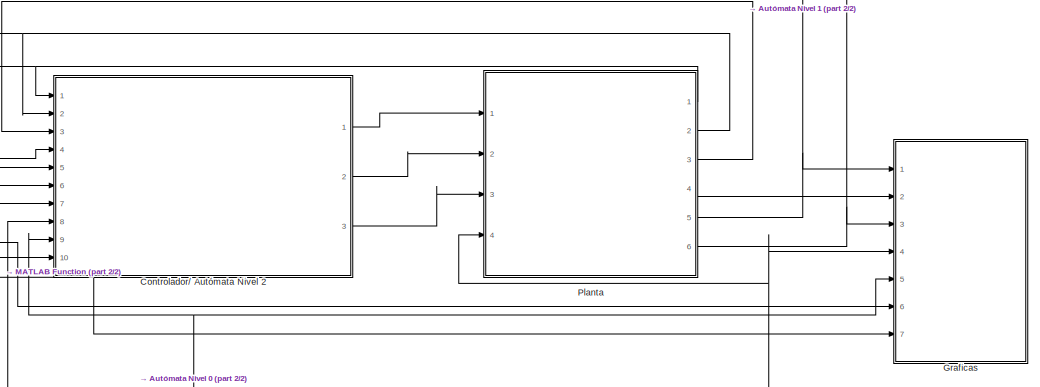
[diagram: root canvas - part 1/2, middle right region]
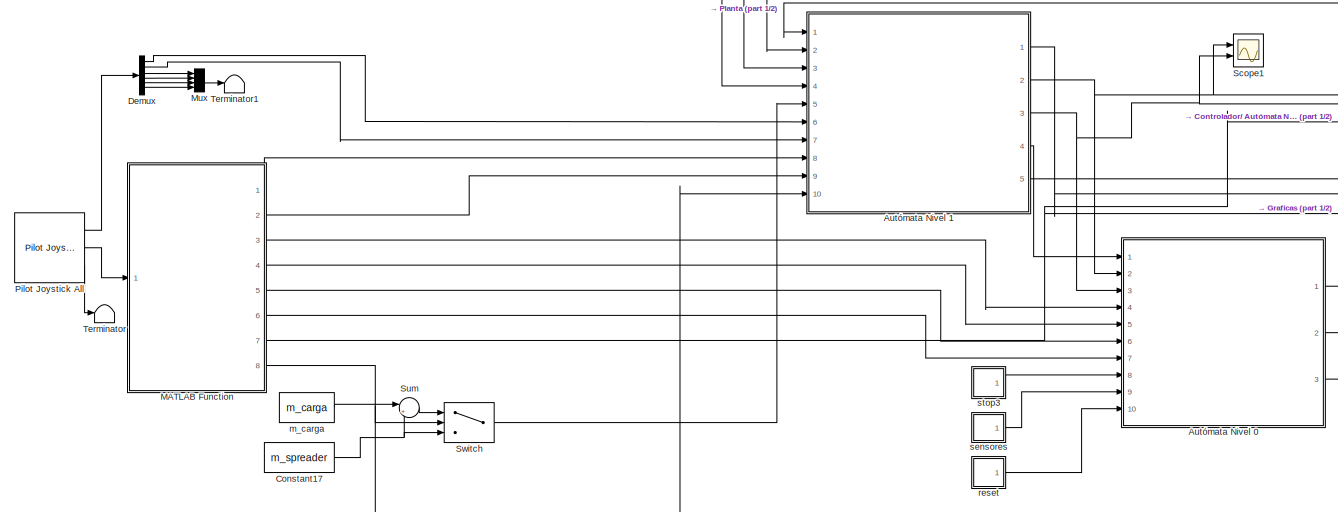
[diagram: root canvas - part 2/2, left side, full height]
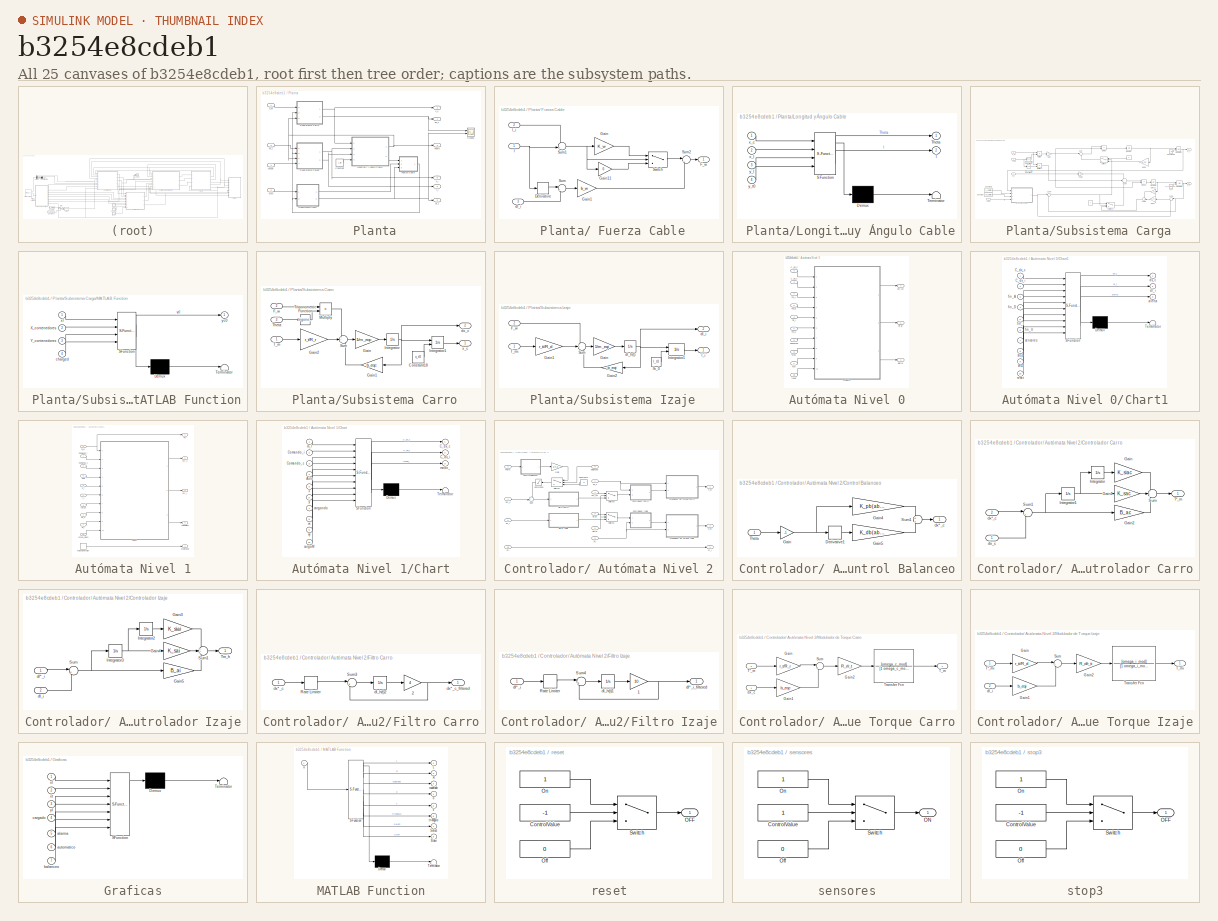
[diagram: thumbnail index - all 25 canvases of the model, root first then tree order]
MODEL slx_b3254e8cdeb1
KIND model
CONFIG AbsTol = auto
CONFIG EnableMultiTasking = on
CONFIG FixedStep = 0.01
CONFIG MaxStep = auto
CONFIG MinStep = auto
CONFIG RelTol = 1e-3
CONFIG SampleTimeConstraint = Unconstrained
CONFIG SolverName = FixedStepAuto
CONFIG StartTime = 0.0
CONFIG StopTime = inf
BLOCK [SubSystem]  Planta
  Ports = [4, 6]
  RequestExecContextInheritance = off
BLOCK [SubSystem]  Planta/ Fuerza Cable
  Ports = [3, 1]
  RequestExecContextInheritance = off
BLOCK [Derivative]  Planta/ Fuerza Cable/Derivative
  NameLocation = top
BLOCK [Outport]  Planta/ Fuerza Cable/F_w
  VectorParamsAs1DForOutWhenUnconnected = off
BLOCK [Gain]  Planta/ Fuerza Cable/Gain
  Gain = K_w
BLOCK [Gain]  Planta/ Fuerza Cable/Gain1
  Gain = b_w
BLOCK [Gain]  Planta/ Fuerza Cable/Gain11
  Gain = 0
BLOCK [Sum]  Planta/ Fuerza Cable/Sum
  Inputs = |+-
  Ports = [2, 1]
BLOCK [Sum]  Planta/ Fuerza Cable/Sum1
  Inputs = -+|
  Ports = [2, 1]
BLOCK [Sum]  Planta/ Fuerza Cable/Sum2
  Inputs = |++
  Ports = [2, 1]
BLOCK [Switch]  Planta/ Fuerza Cable/Switch
  InputSameDT = off
  SaturateOnIntegerOverflow = off
BLOCK [Inport]  Planta/ Fuerza Cable/dl_i
  Port = 3
BLOCK [Inport]  Planta/ Fuerza Cable/l
BLOCK [Inport]  Planta/ Fuerza Cable/l_i
  Port = 2
BLOCK [Constant]  Planta/Constant
  Value = y_t0
BLOCK [SubSystem]  Planta/Longitud y Ángulo Cable
  ErrorFcn = Stateflow.Translate.translate
  PermitHierarchicalResolution = ExplicitOnly
  Ports = [4, 2]
  RequestExecContextInheritance = off
  SFBlockType = MATLAB Function
  TreatAsAtomicUnit = on
BLOCK [Demux]  Planta/Longitud y Ángulo Cable/ Demux 
  Outputs = 1
  Ports = [1, 1]
BLOCK [S-Function]  Planta/Longitud y Ángulo Cable/ SFunction 
  EnableBusSupport = off
  FunctionName = sf_sfun
  PortCounts = [4 3]
  Ports = [4, 3]
  SFcnIsStateOwnerBlock = off
  SFunctionDeploymentMode = off
  Tag = Stateflow S-Function 8
BLOCK [Terminator]  Planta/Longitud y Ángulo Cable/ Terminator 
BLOCK [Outport]  Planta/Longitud y Ángulo Cable/Theta
  VectorParamsAs1DForOutWhenUnconnected = off
BLOCK [Outport]  Planta/Longitud y Ángulo Cable/l
  Port = 2
  VectorParamsAs1DForOutWhenUnconnected = off
BLOCK [Inport]  Planta/Longitud y Ángulo Cable/x_c
BLOCK [Inport]  Planta/Longitud y Ángulo Cable/x_l
  Port = 2
BLOCK [Inport]  Planta/Longitud y Ángulo Cable/y_l
  Port = 3
BLOCK [Inport]  Planta/Longitud y Ángulo Cable/y_t0
  Port = 4
BLOCK [Scope]  Planta/Scope1
  Floating = off
  NumInputPorts = 2
  Ports = [2]
  ScopeSpecificationString = Simulink.scopes.TimeScopeBlockCfg('CurrentConfiguration', extmgr.ConfigurationSet(extmgr.Configuration('Core','General UI',true),extmgr.Configuration('Core','Source UI',true),extmgr.Configuration('Sources','WiredSimulink',true,'DataLoggingVariableName','ScopeData1'),extmgr.Configuration('Visuals','Time Domain',true,'SerializedDisplays',{struct('MinYLimReal','-4.99834','MaxYLimReal','5.12215','YLab...<+2062ch>
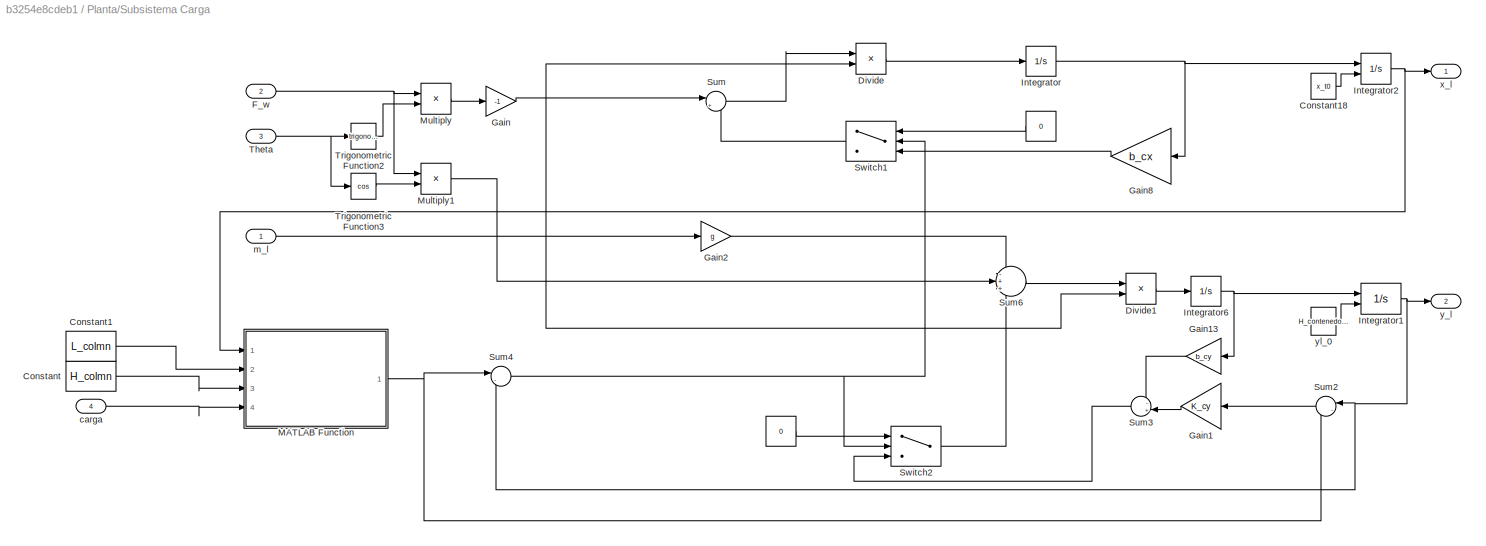
BLOCK [SubSystem]  Planta/Subsistema Carga
  Ports = [4, 2]
  RequestExecContextInheritance = off
BLOCK [Constant]  Planta/Subsistema Carga/ 
  Value = 0
BLOCK [Constant]  Planta/Subsistema Carga/   
  Value = 0
BLOCK [Constant]  Planta/Subsistema Carga/Constant
  Value = H_colmn
BLOCK [Constant]  Planta/Subsistema Carga/Constant1
  Value = L_colmn
BLOCK [Constant]  Planta/Subsistema Carga/Constant18
  Value = x_t0
BLOCK [Product]  Planta/Subsistema Carga/Divide
  Inputs = */
  Ports = [2, 1]
BLOCK [Product]  Planta/Subsistema Carga/Divide1
  Inputs = */
  Ports = [2, 1]
BLOCK [Inport]  Planta/Subsistema Carga/F_w
  Port = 2
BLOCK [Gain]  Planta/Subsistema Carga/Gain
  Gain = -1
BLOCK [Gain]  Planta/Subsistema Carga/Gain1
  Gain = K_cy
BLOCK [Gain]  Planta/Subsistema Carga/Gain13
  Gain = b_cy
BLOCK [Gain]  Planta/Subsistema Carga/Gain2
  Gain = g
BLOCK [Gain]  Planta/Subsistema Carga/Gain8
  Gain = b_cx
BLOCK [Integrator]  Planta/Subsistema Carga/Integrator
  Ports = [1, 1]
BLOCK [Integrator]  Planta/Subsistema Carga/Integrator1
  InitialConditionSource = external
  Ports = [2, 1]
BLOCK [Integrator]  Planta/Subsistema Carga/Integrator2
  InitialConditionSource = external
  Ports = [2, 1]
BLOCK [Integrator]  Planta/Subsistema Carga/Integrator6
  Ports = [1, 1]
BLOCK [SubSystem]  Planta/Subsistema Carga/MATLAB Function
  ErrorFcn = Stateflow.Translate.translate
  PermitHierarchicalResolution = ExplicitOnly
  Ports = [4, 1]
  RequestExecContextInheritance = off
  SFBlockType = MATLAB Function
  TreatAsAtomicUnit = on
BLOCK [Demux]  Planta/Subsistema Carga/MATLAB Function/ Demux 
  Outputs = 1
  Ports = [1, 1]
BLOCK [S-Function]  Planta/Subsistema Carga/MATLAB Function/ SFunction 
  EnableBusSupport = on
  FunctionName = sf_sfun
  PortCounts = [4 2]
  Ports = [4, 2]
  SFcnIsStateOwnerBlock = off
  SFunctionDeploymentMode = off
  Tag = Stateflow S-Function 3
BLOCK [Terminator]  Planta/Subsistema Carga/MATLAB Function/ Terminator 
BLOCK [Inport]  Planta/Subsistema Carga/MATLAB Function/X_contenedores
  Port = 2
BLOCK [Inport]  Planta/Subsistema Carga/MATLAB Function/Y_contenedores
  Port = 3
BLOCK [Inport]  Planta/Subsistema Carga/MATLAB Function/charged
  Port = 4
BLOCK [Inport]  Planta/Subsistema Carga/MATLAB Function/xl
BLOCK [Outport]  Planta/Subsistema Carga/MATLAB Function/yc0
BLOCK [Product]  Planta/Subsistema Carga/Multiply
  Ports = [2, 1]
BLOCK [Product]  Planta/Subsistema Carga/Multiply1
  Ports = [2, 1]
BLOCK [Sum]  Planta/Subsistema Carga/Sum
  Inputs = |+-
  Ports = [2, 1]
BLOCK [Sum]  Planta/Subsistema Carga/Sum2
  Inputs = |-+
  NameLocation = top
  Ports = [2, 1]
BLOCK [Sum]  Planta/Subsistema Carga/Sum3
  Inputs = -+|
  NameLocation = top
  Ports = [2, 1]
BLOCK [Sum]  Planta/Subsistema Carga/Sum4
  Inputs = |-+
  Ports = [2, 1]
BLOCK [Sum]  Planta/Subsistema Carga/Sum6
  Inputs = -++
  Ports = [3, 1]
BLOCK [Switch]  Planta/Subsistema Carga/Switch1
  Criteria = u2 > Threshold
  InputSameDT = off
  SaturateOnIntegerOverflow = off
BLOCK [Switch]  Planta/Subsistema Carga/Switch2
  Criteria = u2 > Threshold
  InputSameDT = off
  SaturateOnIntegerOverflow = off
BLOCK [Inport]  Planta/Subsistema Carga/Theta
  Port = 3
BLOCK [Trigonometry]  Planta/Subsistema Carga/Trigonometric Function2
  Ports = [1, 1]
BLOCK [Trigonometry]  Planta/Subsistema Carga/Trigonometric Function3
  Operator = cos
  Ports = [1, 1]
BLOCK [Inport]  Planta/Subsistema Carga/carga
  Port = 4
BLOCK [Inport]  Planta/Subsistema Carga/m_l
BLOCK [Outport]  Planta/Subsistema Carga/x_l
  VectorParamsAs1DForOutWhenUnconnected = off
BLOCK [Outport]  Planta/Subsistema Carga/y_l
  Port = 2
  VectorParamsAs1DForOutWhenUnconnected = off
BLOCK [Constant]  Planta/Subsistema Carga/yl_0
  Value = H_contenedor + H_seguridad
BLOCK [SubSystem]  Planta/Subsistema Carro
  Ports = [3, 2]
  RequestExecContextInheritance = off
BLOCK [Constant]  Planta/Subsistema Carro/Constant18
  Value = x_t0
BLOCK [Inport]  Planta/Subsistema Carro/F_w
  Port = 2
BLOCK [Gain]  Planta/Subsistema Carro/Gain
  Gain = 1/m_eqc
  NameLocation = top
BLOCK [Gain]  Planta/Subsistema Carro/Gain1
  Gain = b_eqc
  NameLocation = top
BLOCK [Gain]  Planta/Subsistema Carro/Gain2
  Gain = r_t/R_r
  NameLocation = top
BLOCK [Integrator]  Planta/Subsistema Carro/Integrator
  NameLocation = top
  Ports = [1, 1]
BLOCK [Integrator]  Planta/Subsistema Carro/Integrator1
  InitialConditionSource = external
  Ports = [2, 1]
BLOCK [Product]  Planta/Subsistema Carro/Multiply
  Ports = [2, 1]
BLOCK [Sum]  Planta/Subsistema Carro/Sum
  Inputs = ++-
  Ports = [3, 1]
BLOCK [Inport]  Planta/Subsistema Carro/T_m
BLOCK [Inport]  Planta/Subsistema Carro/Theta
  Port = 3
BLOCK [Trigonometry]  Planta/Subsistema Carro/Trigonometric Function
  Ports = [1, 1]
BLOCK [Outport]  Planta/Subsistema Carro/dx_c
  Port = 2
  VectorParamsAs1DForOutWhenUnconnected = off
BLOCK [Outport]  Planta/Subsistema Carro/x_c
  VectorParamsAs1DForOutWhenUnconnected = off
BLOCK [SubSystem]  Planta/Subsistema Izaje
  Ports = [2, 2]
  RequestExecContextInheritance = off
BLOCK [Inport]  Planta/Subsistema Izaje/F_w
  NameLocation = top
  Port = 2
BLOCK [Gain]  Planta/Subsistema Izaje/Gain
  Gain = 1/m_eqi
  NameLocation = top
BLOCK [Gain]  Planta/Subsistema Izaje/Gain1
  Gain = r_ti/R_d
BLOCK [Gain]  Planta/Subsistema Izaje/Gain2
  Gain = b_eqi
  NameLocation = top
BLOCK [Integrator]  Planta/Subsistema Izaje/Integrator1
  InitialConditionSource = external
  Ports = [2, 1]
BLOCK [Sum]  Planta/Subsistema Izaje/Sum
  Inputs = ++-
  Ports = [3, 1]
BLOCK [Inport]  Planta/Subsistema Izaje/T_mi
BLOCK [Integrator]  Planta/Subsistema Izaje/dl_h(t)
  Ports = [1, 1]
BLOCK [Outport]  Planta/Subsistema Izaje/dl_i
  Port = 2
  VectorParamsAs1DForOutWhenUnconnected = off
BLOCK [Outport]  Planta/Subsistema Izaje/l_i
  VectorParamsAs1DForOutWhenUnconnected = off
BLOCK [Constant]  Planta/Subsistema Izaje/lh_0
  Value = l_t0
BLOCK [Inport]  Planta/T_m
BLOCK [Inport]  Planta/T_mi
  Port = 2
BLOCK [Outport]  Planta/Theta
  Port = 3
  VectorParamsAs1DForOutWhenUnconnected = off
BLOCK [Inport]  Planta/carga
  Port = 4
BLOCK [Outport]  Planta/dl_i
  Port = 2
  VectorParamsAs1DForOutWhenUnconnected = off
BLOCK [Outport]  Planta/dx_c
  VectorParamsAs1DForOutWhenUnconnected = off
BLOCK [Inport]  Planta/m_l
  NameLocation = top
  Port = 3
BLOCK [Outport]  Planta/x_c
  Port = 4
  VectorParamsAs1DForOutWhenUnconnected = off
BLOCK [Outport]  Planta/x_l
  Port = 5
  VectorParamsAs1DForOutWhenUnconnected = off
BLOCK [Outport]  Planta/y_l
  Port = 6
  VectorParamsAs1DForOutWhenUnconnected = off
BLOCK [SubSystem] Autómata Nivel 0
  Ports = [10, 3]
  RequestExecContextInheritance = off
BLOCK [Inport] Autómata Nivel 0/C_dx_c
  Port = 2
BLOCK [Inport] Autómata Nivel 0/C_dx_i
  Port = 3
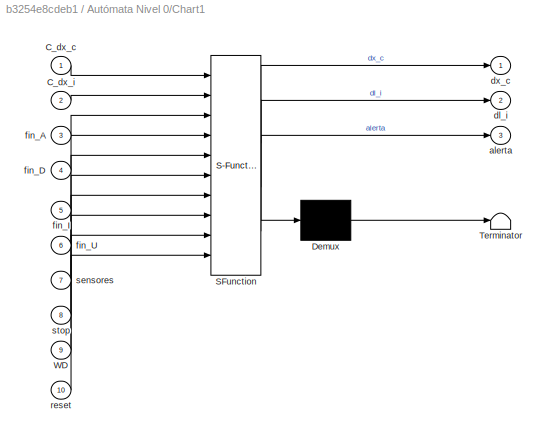
BLOCK [SubSystem] Autómata Nivel 0/Chart1
  ErrorFcn = Stateflow.Translate.translate
  PermitHierarchicalResolution = ExplicitOnly
  Ports = [10, 3]
  RequestExecContextInheritance = off
  SFBlockType = Chart
  TreatAsAtomicUnit = on
BLOCK [Demux] Autómata Nivel 0/Chart1/ Demux 
  Outputs = 1
  Ports = [1, 1]
BLOCK [S-Function] Autómata Nivel 0/Chart1/ SFunction 
  EnableBusSupport = off
  FunctionName = sf_sfun
  PortCounts = [10 4]
  Ports = [10, 4]
  SFcnIsStateOwnerBlock = off
  SFunctionDeploymentMode = off
  Tag = Stateflow S-Function 7
BLOCK [Terminator] Autómata Nivel 0/Chart1/ Terminator 
BLOCK [Inport] Autómata Nivel 0/Chart1/C_dx_c
BLOCK [Inport] Autómata Nivel 0/Chart1/C_dx_i
  Port = 2
BLOCK [Inport] Autómata Nivel 0/Chart1/WD
  Port = 9
BLOCK [Outport] Autómata Nivel 0/Chart1/alerta
  Port = 3
BLOCK [Outport] Autómata Nivel 0/Chart1/dl_i
  Port = 2
BLOCK [Outport] Autómata Nivel 0/Chart1/dx_c
BLOCK [Inport] Autómata Nivel 0/Chart1/fin_A
  Port = 3
BLOCK [Inport] Autómata Nivel 0/Chart1/fin_D
  Port = 4
BLOCK [Inport] Autómata Nivel 0/Chart1/fin_I
  Port = 5
BLOCK [Inport] Autómata Nivel 0/Chart1/fin_U
  Port = 6
BLOCK [Inport] Autómata Nivel 0/Chart1/reset
  Port = 10
BLOCK [Inport] Autómata Nivel 0/Chart1/sensores
  Port = 7
BLOCK [Inport] Autómata Nivel 0/Chart1/stop
  Port = 8
BLOCK [Inport] Autómata Nivel 0/WD
BLOCK [Outport] Autómata Nivel 0/alerta
  Port = 3
BLOCK [Outport] Autómata Nivel 0/dl*_i0
  Port = 2
BLOCK [Outport] Autómata Nivel 0/dx*_c0
BLOCK [Inport] Autómata Nivel 0/fin_A
  Port = 7
BLOCK [Inport] Autómata Nivel 0/fin_D
  Port = 5
BLOCK [Inport] Autómata Nivel 0/fin_I
  Port = 4
BLOCK [Inport] Autómata Nivel 0/fin_U
  Port = 6
BLOCK [Inport] Autómata Nivel 0/reset
  Port = 10
BLOCK [Inport] Autómata Nivel 0/sensores
  Port = 9
BLOCK [Inport] Autómata Nivel 0/stop
  Port = 8
BLOCK [SubSystem] Autómata Nivel 1
  Ports = [10, 5]
  RequestExecContextInheritance = off
BLOCK [SubSystem] Autómata Nivel 1/Chart
  ErrorFcn = Stateflow.Translate.translate
  PermitHierarchicalResolution = ExplicitOnly
  Ports = [10, 3]
  RequestExecContextInheritance = off
  SFBlockType = Chart
  TreatAsAtomicUnit = on
BLOCK [Demux] Autómata Nivel 1/Chart/ Demux 
  Outputs = 1
  Ports = [1, 1]
BLOCK [S-Function] Autómata Nivel 1/Chart/ SFunction 
  EnableBusSupport = off
  FunctionName = sf_sfun
  Parameters = H,L,v_c_max
  PortCounts = [10 4]
  Ports = [10, 4]
  SFcnIsStateOwnerBlock = off
  SFunctionDeploymentMode = off
  Tag = Stateflow S-Function 1
BLOCK [Terminator] Autómata Nivel 1/Chart/ Terminator 
BLOCK [Inport] Autómata Nivel 1/Chart/Auto
  Port = 4
BLOCK [Outport] Autómata Nivel 1/Chart/C_dx_c
  VectorParamsAs1DForOutWhenUnconnected = off
BLOCK [Outport] Autómata Nivel 1/Chart/C_dx_i
  Port = 2
  VectorParamsAs1DForOutWhenUnconnected = off
BLOCK [Inport] Autómata Nivel 1/Chart/Comando_c
  Port = 3
BLOCK [Inport] Autómata Nivel 1/Chart/Comando_i
  Port = 2
BLOCK [Inport] Autómata Nivel 1/Chart/cargaM
  Port = 10
BLOCK [Inport] Autómata Nivel 1/Chart/cargando
  Port = 7
BLOCK [Inport] Autómata Nivel 1/Chart/m_l
BLOCK [Outport] Autómata Nivel 1/Chart/modo_
  Port = 3
BLOCK [Inport] Autómata Nivel 1/Chart/vx
  Port = 8
BLOCK [Inport] Autómata Nivel 1/Chart/vy
  Port = 9
BLOCK [Inport] Autómata Nivel 1/Chart/x
  Port = 5
BLOCK [Inport] Autómata Nivel 1/Chart/y
  Port = 6
BLOCK [Inport] Autómata Nivel 1/Comando_c
  Port = 6
BLOCK [Inport] Autómata Nivel 1/Comando_i
  Port = 7
BLOCK [DiscretePulseGenerator] Autómata Nivel 1/Pulse Generator
  Period = 0.2
  PhaseDelay = 0.1
  Ports = [0, 1]
  PulseType = Time based
  PulseWidth = 50
BLOCK [Outport] Autómata Nivel 1/Watchdog
  Port = 4
BLOCK [Inport] Autómata Nivel 1/auto
  Port = 8
BLOCK [Outport] Autómata Nivel 1/automatico
  Port = 5
BLOCK [Inport] Autómata Nivel 1/carga
  Port = 9
BLOCK [Inport] Autómata Nivel 1/carga_masa
  Port = 10
BLOCK [Inport] Autómata Nivel 1/dl_i
  Port = 2
BLOCK [Outport] Autómata Nivel 1/dx*_c
  Port = 2
  VectorParamsAs1DForOutWhenUnconnected = off
BLOCK [Outport] Autómata Nivel 1/dx*_i
  Port = 3
  VectorParamsAs1DForOutWhenUnconnected = off
BLOCK [Inport] Autómata Nivel 1/dx_c
BLOCK [Outport] Autómata Nivel 1/m_l
  VectorParamsAs1DForOutWhenUnconnected = off
BLOCK [Inport] Autómata Nivel 1/m_w
  Port = 5
BLOCK [Inport] Autómata Nivel 1/x_l
  Port = 3
BLOCK [Inport] Autómata Nivel 1/y_l
  Port = 4
BLOCK [Constant] Constant17
  NameLocation = top
  Value = m_spreader
BLOCK [SubSystem] Controlador// Autómata Nivel 2
  Ports = [10, 3]
  RequestExecContextInheritance = off
BLOCK [Inport] Controlador// Autómata Nivel 2/Alerta
  Port = 9
BLOCK [Inport] Controlador// Autómata Nivel 2/Balanceo
  Port = 6
BLOCK [Constant] Controlador// Autómata Nivel 2/Constant2
  Value = 0
BLOCK [SubSystem] Controlador// Autómata Nivel 2/Control Balanceo
  NameLocation = top
  Ports = [1, 1]
  RequestExecContextInheritance = off
BLOCK [Derivative] Controlador// Autómata Nivel 2/Control Balanceo/Derivative1
BLOCK [Gain] Controlador// Autómata Nivel 2/Control Balanceo/Gain
  Gain = -1
BLOCK [Gain] Controlador// Autómata Nivel 2/Control Balanceo/Gain4
  Gain = K_pb(abs(lh))
BLOCK [Gain] Controlador// Autómata Nivel 2/Control Balanceo/Gain5
  Gain = K_db(abs(lh))
BLOCK [Sum] Controlador// Autómata Nivel 2/Control Balanceo/Sum1
  Inputs = +|+
  Ports = [2, 1]
BLOCK [Inport] Controlador// Autómata Nivel 2/Control Balanceo/Theta
BLOCK [Outport] Controlador// Autómata Nivel 2/Control Balanceo/dx*_c
  VectorParamsAs1DForOutWhenUnconnected = off
BLOCK [SubSystem] Controlador// Autómata Nivel 2/Controlador Carro
  Ports = [2, 1]
  RequestExecContextInheritance = off
BLOCK [Gain] Controlador// Autómata Nivel 2/Controlador Carro/Gain
  Gain = K_siac
BLOCK [Gain] Controlador// Autómata Nivel 2/Controlador Carro/Gain1
  Gain = K_sac
BLOCK [Gain] Controlador// Autómata Nivel 2/Controlador Carro/Gain2
  Gain = B_ac
BLOCK [Integrator] Controlador// Autómata Nivel 2/Controlador Carro/Integrator
  Ports = [1, 1]
BLOCK [Integrator] Controlador// Autómata Nivel 2/Controlador Carro/Integrator1
  Ports = [1, 1]
BLOCK [Sum] Controlador// Autómata Nivel 2/Controlador Carro/Sum
  Inputs = +++
  Ports = [3, 1]
BLOCK [Sum] Controlador// Autómata Nivel 2/Controlador Carro/Sum1
  Inputs = |+-
  Ports = [2, 1]
BLOCK [Outport] Controlador// Autómata Nivel 2/Controlador Carro/T*_m
  VectorParamsAs1DForOutWhenUnconnected = off
BLOCK [Inport] Controlador// Autómata Nivel 2/Controlador Carro/dx*_c
  Port = 2
BLOCK [Inport] Controlador// Autómata Nivel 2/Controlador Carro/dx_c
BLOCK [SubSystem] Controlador// Autómata Nivel 2/Controlador Izaje
  Ports = [2, 1]
  RequestExecContextInheritance = off
BLOCK [Gain] Controlador// Autómata Nivel 2/Controlador Izaje/Gain3
  Gain = K_siai
BLOCK [Gain] Controlador// Autómata Nivel 2/Controlador Izaje/Gain4
  Gain = K_sai
BLOCK [Gain] Controlador// Autómata Nivel 2/Controlador Izaje/Gain5
  Gain = B_ai
BLOCK [Integrator] Controlador// Autómata Nivel 2/Controlador Izaje/Integrator2
  Ports = [1, 1]
BLOCK [Integrator] Controlador// Autómata Nivel 2/Controlador Izaje/Integrator3
  Ports = [1, 1]
BLOCK [Sum] Controlador// Autómata Nivel 2/Controlador Izaje/Sum
  Inputs = |+-
  Ports = [2, 1]
BLOCK [Sum] Controlador// Autómata Nivel 2/Controlador Izaje/Sum1
  Inputs = +++
  Ports = [3, 1]
BLOCK [Outport] Controlador// Autómata Nivel 2/Controlador Izaje/Tm_h
  VectorParamsAs1DForOutWhenUnconnected = off
BLOCK [Inport] Controlador// Autómata Nivel 2/Controlador Izaje/dl*_i
BLOCK [Inport] Controlador// Autómata Nivel 2/Controlador Izaje/dl_i
  Port = 2
BLOCK [SubSystem] Controlador// Autómata Nivel 2/Filtro Carro
  Ports = [1, 1]
  RequestExecContextInheritance = off
BLOCK [Gain] Controlador// Autómata Nivel 2/Filtro Carro/2
  Gain = 4
BLOCK [RateLimiter] Controlador// Autómata Nivel 2/Filtro Carro/Rate Limiter 
  FallingSlewLimit = -a_c_max
  RisingSlewLimit = a_c_max
BLOCK [Sum] Controlador// Autómata Nivel 2/Filtro Carro/Sum3
  Inputs = |+-
  Ports = [2, 1]
BLOCK [Integrator] Controlador// Autómata Nivel 2/Filtro Carro/dl_h(t)2
  Ports = [1, 1]
BLOCK [Inport] Controlador// Autómata Nivel 2/Filtro Carro/dx*_c
BLOCK [Outport] Controlador// Autómata Nivel 2/Filtro Carro/dx*_c_filtered
  VectorParamsAs1DForOutWhenUnconnected = off
BLOCK [SubSystem] Controlador// Autómata Nivel 2/Filtro Izaje
  Ports = [1, 1]
  RequestExecContextInheritance = off
BLOCK [Gain] Controlador// Autómata Nivel 2/Filtro Izaje/1
  Gain = 10
BLOCK [RateLimiter] Controlador// Autómata Nivel 2/Filtro Izaje/Rate Limiter
  FallingSlewLimit = -a_i_max
  RisingSlewLimit = a_i_max
BLOCK [Sum] Controlador// Autómata Nivel 2/Filtro Izaje/Sum4
  Inputs = |+-
  Ports = [2, 1]
BLOCK [Inport] Controlador// Autómata Nivel 2/Filtro Izaje/dl*_i
BLOCK [Outport] Controlador// Autómata Nivel 2/Filtro Izaje/dl*_i_filtered
  VectorParamsAs1DForOutWhenUnconnected = off
BLOCK [Integrator] Controlador// Autómata Nivel 2/Filtro Izaje/dl_h(t)1
  Ports = [1, 1]
BLOCK [Gain] Controlador// Autómata Nivel 2/Gain
  Gain = 1/4.3
BLOCK [SubSystem] Controlador// Autómata Nivel 2/Modulador de Torque Carro
  Ports = [2, 1]
  RequestExecContextInheritance = off
BLOCK [Gain] Controlador// Autómata Nivel 2/Modulador de Torque Carro/Gain
  Gain = r_t/R_r
BLOCK [Gain] Controlador// Autómata Nivel 2/Modulador de Torque Carro/Gain1
  Gain = b_eqc
BLOCK [Gain] Controlador// Autómata Nivel 2/Modulador de Torque Carro/Gain2
  Gain = R_r/r_t
BLOCK [Sum] Controlador// Autómata Nivel 2/Modulador de Torque Carro/Sum
  Inputs = |++
  Ports = [2, 1]
BLOCK [Inport] Controlador// Autómata Nivel 2/Modulador de Torque Carro/T*_m
  Port = 2
BLOCK [Outport] Controlador// Autómata Nivel 2/Modulador de Torque Carro/T_m
  VectorParamsAs1DForOutWhenUnconnected = off
BLOCK [TransferFcn] Controlador// Autómata Nivel 2/Modulador de Torque Carro/Transfer Fcn
  Denominator = [1 omega_c_mod]
  Numerator = [omega_c_mod]
BLOCK [Inport] Controlador// Autómata Nivel 2/Modulador de Torque Carro/dx_c
BLOCK [SubSystem] Controlador// Autómata Nivel 2/Modulador de Torque Izaje
  Ports = [2, 1]
  RequestExecContextInheritance = off
BLOCK [Gain] Controlador// Autómata Nivel 2/Modulador de Torque Izaje/Gain
  Gain = r_ti/R_d
BLOCK [Gain] Controlador// Autómata Nivel 2/Modulador de Torque Izaje/Gain1
  Gain = b_eqi
BLOCK [Gain] Controlador// Autómata Nivel 2/Modulador de Torque Izaje/Gain2
  Gain = R_d/r_ti
BLOCK [Sum] Controlador// Autómata Nivel 2/Modulador de Torque Izaje/Sum
  Inputs = |++
  Ports = [2, 1]
BLOCK [Inport] Controlador// Autómata Nivel 2/Modulador de Torque Izaje/T*_mi
BLOCK [Outport] Controlador// Autómata Nivel 2/Modulador de Torque Izaje/T_mi
  VectorParamsAs1DForOutWhenUnconnected = off
BLOCK [TransferFcn] Controlador// Autómata Nivel 2/Modulador de Torque Izaje/Transfer Fcn
  Denominator = [1 omega_i_mod]
  Numerator = [omega_i_mod]
BLOCK [Inport] Controlador// Autómata Nivel 2/Modulador de Torque Izaje/dl_i
  Port = 2
BLOCK [Saturate] Controlador// Autómata Nivel 2/Saturation 
  LowerLimit = -5
  UpperLimit = 5
BLOCK [Sum] Controlador// Autómata Nivel 2/Sum
  Inputs = ++|
  Ports = [2, 1]
BLOCK [Switch] Controlador// Autómata Nivel 2/Switch1
  Criteria = u2 > Threshold
  InputSameDT = off
  SaturateOnIntegerOverflow = off
BLOCK [Switch] Controlador// Autómata Nivel 2/Switch2
  Criteria = u2 > Threshold
  InputSameDT = off
  SaturateOnIntegerOverflow = off
BLOCK [Switch] Controlador// Autómata Nivel 2/Switch3
  Criteria = u2 > Threshold
  InputSameDT = off
  SaturateOnIntegerOverflow = off
BLOCK [Outport] Controlador// Autómata Nivel 2/T_m
  VectorParamsAs1DForOutWhenUnconnected = off
BLOCK [Outport] Controlador// Autómata Nivel 2/T_mi
  Port = 2
  VectorParamsAs1DForOutWhenUnconnected = off
BLOCK [Inport] Controlador// Autómata Nivel 2/Theta
  Port = 3
BLOCK [Inport] Controlador// Autómata Nivel 2/dl*_i
  Port = 5
BLOCK [Inport] Controlador// Autómata Nivel 2/dl*_i0
  Port = 8
BLOCK [Inport] Controlador// Autómata Nivel 2/dl_i
  Port = 2
BLOCK [Inport] Controlador// Autómata Nivel 2/dx*_c
  Port = 4
BLOCK [Inport] Controlador// Autómata Nivel 2/dx*_c0
  Port = 7
BLOCK [Inport] Controlador// Autómata Nivel 2/dx_c
BLOCK [Outport] Controlador// Autómata Nivel 2/m_l
  Port = 3
  VectorParamsAs1DForOutWhenUnconnected = off
BLOCK [Inport] Controlador// Autómata Nivel 2/ml
  Port = 10
BLOCK [Demux] Demux
  Outputs = 6
  Ports = [1, 6]
BLOCK [SubSystem] Graficas
  ErrorFcn = Stateflow.Translate.translate
  PermitHierarchicalResolution = ExplicitOnly
  Ports = [7]
  RequestExecContextInheritance = off
  SFBlockType = Chart
  TreatAsAtomicUnit = on
BLOCK [Demux] Graficas/ Demux 
  Outputs = 1
  Ports = [1, 1]
BLOCK [S-Function] Graficas/ SFunction 
  EnableBusSupport = off
  FunctionName = sf_sfun
  PortCounts = [7 1]
  Ports = [7, 1]
  SFcnIsStateOwnerBlock = off
  SFunctionDeploymentMode = off
  Tag = Stateflow S-Function 2
BLOCK [Terminator] Graficas/ Terminator 
BLOCK [Inport] Graficas/alarma
  Port = 5
BLOCK [Inport] Graficas/automatico
  Port = 6
BLOCK [Inport] Graficas/balanceo
  Port = 7
BLOCK [Inport] Graficas/cargado
  Port = 4
BLOCK [Inport] Graficas/xl
BLOCK [Inport] Graficas/xt
  Port = 2
BLOCK [Inport] Graficas/yl
  Port = 3
BLOCK [SubSystem] MATLAB Function
  ErrorFcn = Stateflow.Translate.translate
  PermitHierarchicalResolution = ExplicitOnly
  Ports = [1, 8]
  RequestExecContextInheritance = off
  SFBlockType = MATLAB Function
  TreatAsAtomicUnit = on
BLOCK [Demux] MATLAB Function/ Demux 
  Outputs = 1
  Ports = [1, 1]
BLOCK [S-Function] MATLAB Function/ SFunction 
  EnableBusSupport = off
  FunctionName = sf_sfun
  PortCounts = [1 9]
  Ports = [1, 9]
  SFcnIsStateOwnerBlock = off
  SFunctionDeploymentMode = off
  Tag = Stateflow S-Function 5
BLOCK [Terminator] MATLAB Function/ Terminator 
BLOCK [Outport] MATLAB Function/L
  VectorParamsAs1DForOutWhenUnconnected = off
BLOCK [Outport] MATLAB Function/R
  Port = 2
  VectorParamsAs1DForOutWhenUnconnected = off
BLOCK [Outport] MATLAB Function/Select
  Port = 7
  VectorParamsAs1DForOutWhenUnconnected = off
BLOCK [Outport] MATLAB Function/Start
  Port = 8
  VectorParamsAs1DForOutWhenUnconnected = off
BLOCK [Outport] MATLAB Function/cuadrado
  Port = 3
  VectorParamsAs1DForOutWhenUnconnected = off
BLOCK [Outport] MATLAB Function/o
  Port = 4
  VectorParamsAs1DForOutWhenUnconnected = off
BLOCK [Outport] MATLAB Function/triangulo
  Port = 6
  VectorParamsAs1DForOutWhenUnconnected = off
BLOCK [Inport] MATLAB Function/u
BLOCK [Outport] MATLAB Function/x
  Port = 5
  VectorParamsAs1DForOutWhenUnconnected = off
BLOCK [Mux] Mux
  DisplayOption = bar
  Ports = [4, 1]
BLOCK [Reference] Pilot Joystick All  REF=aerolibanimutils/Pilot Joystick
  Ports = [0, 3]
  SourceBlock = aerolibanimutils/Pilot Joystick
  SourceProductBaseCode = AE
  SourceType = PilotJoystick
BLOCK [Scope] Scope1
  Floating = off
  NumInputPorts = 2
  Ports = [2]
  ScopeSpecificationString = Simulink.scopes.TimeScopeBlockCfg('CurrentConfiguration', extmgr.ConfigurationSet(extmgr.Configuration('Core','General UI',true),extmgr.Configuration('Core','Source UI',true),extmgr.Configuration('Sources','WiredSimulink',true,'DataLoggingVariableName','ScopeData2'),extmgr.Configuration('Visuals','Time Domain',true,'SerializedDisplays',{struct('MinYLimReal','-4.99988','MaxYLimReal','5.00012','YLab...<+2044ch>
BLOCK [Sum] Sum
  Inputs = |++
  Ports = [2, 1]
BLOCK [Switch] Switch
  Criteria = u2 > Threshold
  InputSameDT = off
  SaturateOnIntegerOverflow = off
BLOCK [Terminator] Terminator
BLOCK [Terminator] Terminator1
BLOCK [Constant] m_carga
  Value = m_carga
BLOCK [SubSystem] reset
  OpenFcn = blockname1=[gcb '/ControlValue/'];        \nblockname2=[gcb '/'];                     \n                                          \nh1=get_param(blockname1,'handle');        \nh2=get_param(blockname2,'handle');        \nONOFF=str2num(get_param(h1,'Value'));     \n                                          \nif ONOFF== 1                              \n    %Turn off                             \n    set_param...<+334ch>  <repeated x3 — deduplicated; at blocks: reset, sensores, stop3>
  Ports = [0, 1]
  RequestExecContextInheritance = off
BLOCK [Constant] reset/ControlValue
  Value = -1
BLOCK [Outport] reset/OFF
  VectorParamsAs1DForOutWhenUnconnected = off
BLOCK [Constant] reset/Off
  Value = 0
BLOCK [Constant] reset/On
BLOCK [Switch] reset/Switch
  InputSameDT = off
  SaturateOnIntegerOverflow = off
BLOCK [SubSystem] sensores
  Ports = [0, 1]
  RequestExecContextInheritance = off
BLOCK [Constant] sensores/ControlValue
BLOCK [Outport] sensores/ON
  VectorParamsAs1DForOutWhenUnconnected = off
BLOCK [Constant] sensores/Off
  Value = 0
BLOCK [Constant] sensores/On
BLOCK [Switch] sensores/Switch
  InputSameDT = off
  SaturateOnIntegerOverflow = off
BLOCK [SubSystem] stop3
  Ports = [0, 1]
  RequestExecContextInheritance = off
BLOCK [Constant] stop3/ControlValue
  Value = -1
BLOCK [Outport] stop3/OFF
  VectorParamsAs1DForOutWhenUnconnected = off
BLOCK [Constant] stop3/Off
  Value = 0
BLOCK [Constant] stop3/On
BLOCK [Switch] stop3/Switch
  InputSameDT = off
  SaturateOnIntegerOverflow = off
LINE  Planta/ Fuerza Cable/Derivative:1 ->  Planta/ Fuerza Cable/Sum:1
LINE  Planta/ Fuerza Cable/Gain11:1 ->  Planta/ Fuerza Cable/Switch:3
LINE  Planta/ Fuerza Cable/Gain1:1 ->  Planta/ Fuerza Cable/Sum2:2
LINE  Planta/ Fuerza Cable/Gain:1 ->  Planta/ Fuerza Cable/Switch:1
NET  Planta/ Fuerza Cable/Sum1:1 ->  Planta/ Fuerza Cable/Gain11:1,  Planta/ Fuerza Cable/Gain:1,  Planta/ Fuerza Cable/Switch:2
LINE  Planta/ Fuerza Cable/Sum2:1 ->  Planta/ Fuerza Cable/F_w:1
LINE  Planta/ Fuerza Cable/Sum:1 ->  Planta/ Fuerza Cable/Gain1:1
LINE  Planta/ Fuerza Cable/Switch:1 ->  Planta/ Fuerza Cable/Sum2:1
LINE  Planta/ Fuerza Cable/dl_i:1 ->  Planta/ Fuerza Cable/Sum:2
NET  Planta/ Fuerza Cable/l:1 ->  Planta/ Fuerza Cable/Derivative:1,  Planta/ Fuerza Cable/Sum1:2
LINE  Planta/ Fuerza Cable/l_i:1 ->  Planta/ Fuerza Cable/Sum1:1
NET  Planta/ Fuerza Cable:1 ->  Planta/Subsistema Carga:2,  Planta/Subsistema Carro:2,  Planta/Subsistema Izaje:2
LINE  Planta/Constant:1 ->  Planta/Longitud y Ángulo Cable:4
NET  Planta/Longitud y Ángulo Cable:1 ->  Planta/Subsistema Carga:3,  Planta/Subsistema Carro:3,  Planta/Theta:1
LINE  Planta/Longitud y Ángulo Cable:2 ->  Planta/ Fuerza Cable:1
LINE  Planta/Subsistema Carga/   :1 ->  Planta/Subsistema Carga/Switch2:1
LINE  Planta/Subsistema Carga/ :1 ->  Planta/Subsistema Carga/Switch1:1
LINE  Planta/Subsistema Carga/Constant18:1 ->  Planta/Subsistema Carga/Integrator2:2
LINE  Planta/Subsistema Carga/Constant1:1 ->  Planta/Subsistema Carga/MATLAB Function:2
LINE  Planta/Subsistema Carga/Constant:1 ->  Planta/Subsistema Carga/MATLAB Function:3
LINE  Planta/Subsistema Carga/Divide1:1 ->  Planta/Subsistema Carga/Integrator6:1
LINE  Planta/Subsistema Carga/Divide:1 ->  Planta/Subsistema Carga/Integrator:1
NET  Planta/Subsistema Carga/F_w:1 ->  Planta/Subsistema Carga/Multiply1:1,  Planta/Subsistema Carga/Multiply:1
LINE  Planta/Subsistema Carga/Gain13:1 ->  Planta/Subsistema Carga/Sum3:1
LINE  Planta/Subsistema Carga/Gain1:1 ->  Planta/Subsistema Carga/Sum3:2
LINE  Planta/Subsistema Carga/Gain2:1 ->  Planta/Subsistema Carga/Sum6:1
LINE  Planta/Subsistema Carga/Gain8:1 ->  Planta/Subsistema Carga/Switch1:3
LINE  Planta/Subsistema Carga/Gain:1 ->  Planta/Subsistema Carga/Sum:1
NET  Planta/Subsistema Carga/Integrator1:1 ->  Planta/Subsistema Carga/Sum2:1,  Planta/Subsistema Carga/Sum4:2,  Planta/Subsistema Carga/y_l:1
NET  Planta/Subsistema Carga/Integrator2:1 ->  Planta/Subsistema Carga/MATLAB Function:1,  Planta/Subsistema Carga/x_l:1
NET  Planta/Subsistema Carga/Integrator6:1 ->  Planta/Subsistema Carga/Gain13:1,  Planta/Subsistema Carga/Integrator1:1
NET  Planta/Subsistema Carga/Integrator:1 ->  Planta/Subsistema Carga/Gain8:1,  Planta/Subsistema Carga/Integrator2:1
NET  Planta/Subsistema Carga/MATLAB Function:1 ->  Planta/Subsistema Carga/Sum2:2,  Planta/Subsistema Carga/Sum4:1
LINE  Planta/Subsistema Carga/Multiply1:1 ->  Planta/Subsistema Carga/Sum6:2
LINE  Planta/Subsistema Carga/Multiply:1 ->  Planta/Subsistema Carga/Gain:1
LINE  Planta/Subsistema Carga/Sum2:1 ->  Planta/Subsistema Carga/Gain1:1
LINE  Planta/Subsistema Carga/Sum3:1 ->  Planta/Subsistema Carga/Switch2:3
NET  Planta/Subsistema Carga/Sum4:1 ->  Planta/Subsistema Carga/Switch1:2,  Planta/Subsistema Carga/Switch2:2
LINE  Planta/Subsistema Carga/Sum6:1 ->  Planta/Subsistema Carga/Divide1:1
LINE  Planta/Subsistema Carga/Sum:1 ->  Planta/Subsistema Carga/Divide:1
LINE  Planta/Subsistema Carga/Switch1:1 ->  Planta/Subsistema Carga/Sum:2
LINE  Planta/Subsistema Carga/Switch2:1 ->  Planta/Subsistema Carga/Sum6:3
NET  Planta/Subsistema Carga/Theta:1 ->  Planta/Subsistema Carga/Trigonometric Function2:1,  Planta/Subsistema Carga/Trigonometric Function3:1
LINE  Planta/Subsistema Carga/Trigonometric Function2:1 ->  Planta/Subsistema Carga/Multiply:2
LINE  Planta/Subsistema Carga/Trigonometric Function3:1 ->  Planta/Subsistema Carga/Multiply1:2
LINE  Planta/Subsistema Carga/carga:1 ->  Planta/Subsistema Carga/MATLAB Function:4
NET  Planta/Subsistema Carga/m_l:1 ->  Planta/Subsistema Carga/Divide1:2,  Planta/Subsistema Carga/Divide:2,  Planta/Subsistema Carga/Gain2:1
LINE  Planta/Subsistema Carga/yl_0:1 ->  Planta/Subsistema Carga/Integrator1:2
NET  Planta/Subsistema Carga:1 ->  Planta/Longitud y Ángulo Cable:2,  Planta/x_l:1
NET  Planta/Subsistema Carga:2 ->  Planta/Longitud y Ángulo Cable:3,  Planta/y_l:1
LINE  Planta/Subsistema Carro/Constant18:1 ->  Planta/Subsistema Carro/Integrator1:2
LINE  Planta/Subsistema Carro/F_w:1 ->  Planta/Subsistema Carro/Multiply:1
LINE  Planta/Subsistema Carro/Gain1:1 ->  Planta/Subsistema Carro/Sum:3
LINE  Planta/Subsistema Carro/Gain2:1 ->  Planta/Subsistema Carro/Sum:2
LINE  Planta/Subsistema Carro/Gain:1 ->  Planta/Subsistema Carro/Integrator:1
LINE  Planta/Subsistema Carro/Integrator1:1 ->  Planta/Subsistema Carro/x_c:1
NET  Planta/Subsistema Carro/Integrator:1 ->  Planta/Subsistema Carro/Gain1:1,  Planta/Subsistema Carro/Integrator1:1,  Planta/Subsistema Carro/dx_c:1
LINE  Planta/Subsistema Carro/Multiply:1 ->  Planta/Subsistema Carro/Sum:1
LINE  Planta/Subsistema Carro/Sum:1 ->  Planta/Subsistema Carro/Gain:1
LINE  Planta/Subsistema Carro/T_m:1 ->  Planta/Subsistema Carro/Gain2:1
LINE  Planta/Subsistema Carro/Theta:1 ->  Planta/Subsistema Carro/Trigonometric Function:1
LINE  Planta/Subsistema Carro/Trigonometric Function:1 ->  Planta/Subsistema Carro/Multiply:2
NET  Planta/Subsistema Carro:1 ->  Planta/Longitud y Ángulo Cable:1,  Planta/x_c:1
NET  Planta/Subsistema Carro:2 ->  Planta/Scope1:1,  Planta/dx_c:1
LINE  Planta/Subsistema Izaje/F_w:1 ->  Planta/Subsistema Izaje/Sum:1
LINE  Planta/Subsistema Izaje/Gain1:1 ->  Planta/Subsistema Izaje/Sum:2
LINE  Planta/Subsistema Izaje/Gain2:1 ->  Planta/Subsistema Izaje/Sum:3
LINE  Planta/Subsistema Izaje/Gain:1 ->  Planta/Subsistema Izaje/dl_h(t):1
LINE  Planta/Subsistema Izaje/Integrator1:1 ->  Planta/Subsistema Izaje/l_i:1
LINE  Planta/Subsistema Izaje/Sum:1 ->  Planta/Subsistema Izaje/Gain:1
LINE  Planta/Subsistema Izaje/T_mi:1 ->  Planta/Subsistema Izaje/Gain1:1
NET  Planta/Subsistema Izaje/dl_h(t):1 ->  Planta/Subsistema Izaje/Gain2:1,  Planta/Subsistema Izaje/Integrator1:1,  Planta/Subsistema Izaje/dl_i:1
LINE  Planta/Subsistema Izaje/lh_0:1 ->  Planta/Subsistema Izaje/Integrator1:2
LINE  Planta/Subsistema Izaje:1 ->  Planta/ Fuerza Cable:2
NET  Planta/Subsistema Izaje:2 ->  Planta/ Fuerza Cable:3,  Planta/Scope1:2,  Planta/dl_i:1
LINE  Planta/T_m:1 ->  Planta/Subsistema Carro:1
LINE  Planta/T_mi:1 ->  Planta/Subsistema Izaje:1
LINE  Planta/carga:1 ->  Planta/Subsistema Carga:4
LINE  Planta/m_l:1 ->  Planta/Subsistema Carga:1
NET  Planta:1 -> Autómata Nivel 1:1, Controlador// Autómata Nivel 2:1
NET  Planta:2 -> Autómata Nivel 1:2, Controlador// Autómata Nivel 2:2
LINE  Planta:3 -> Controlador// Autómata Nivel 2:3
LINE  Planta:4 -> Graficas:2
NET  Planta:5 -> Autómata Nivel 1:3, Graficas:1
NET  Planta:6 -> Autómata Nivel 1:4, Graficas:3
LINE Autómata Nivel 0/C_dx_c:1 -> Autómata Nivel 0/Chart1:1
LINE Autómata Nivel 0/C_dx_i:1 -> Autómata Nivel 0/Chart1:2
LINE Autómata Nivel 0/Chart1:1 -> Autómata Nivel 0/dx*_c0:1
LINE Autómata Nivel 0/Chart1:2 -> Autómata Nivel 0/dl*_i0:1
LINE Autómata Nivel 0/Chart1:3 -> Autómata Nivel 0/alerta:1
LINE Autómata Nivel 0/WD:1 -> Autómata Nivel 0/Chart1:9
LINE Autómata Nivel 0/fin_A:1 -> Autómata Nivel 0/Chart1:3
LINE Autómata Nivel 0/fin_D:1 -> Autómata Nivel 0/Chart1:4
LINE Autómata Nivel 0/fin_I:1 -> Autómata Nivel 0/Chart1:5
LINE Autómata Nivel 0/fin_U:1 -> Autómata Nivel 0/Chart1:6
LINE Autómata Nivel 0/reset:1 -> Autómata Nivel 0/Chart1:10
LINE Autómata Nivel 0/sensores:1 -> Autómata Nivel 0/Chart1:7
LINE Autómata Nivel 0/stop:1 -> Autómata Nivel 0/Chart1:8
LINE Autómata Nivel 0:1 -> Controlador// Autómata Nivel 2:7
LINE Autómata Nivel 0:2 -> Controlador// Autómata Nivel 2:8
NET Autómata Nivel 0:3 -> Controlador// Autómata Nivel 2:9, Graficas:5
LINE Autómata Nivel 1/Chart:1 -> Autómata Nivel 1/dx*_c:1
LINE Autómata Nivel 1/Chart:2 -> Autómata Nivel 1/dx*_i:1
LINE Autómata Nivel 1/Chart:3 -> Autómata Nivel 1/automatico:1
LINE Autómata Nivel 1/Comando_c:1 -> Autómata Nivel 1/Chart:3
LINE Autómata Nivel 1/Comando_i:1 -> Autómata Nivel 1/Chart:2
LINE Autómata Nivel 1/Pulse Generator:1 -> Autómata Nivel 1/Watchdog:1
LINE Autómata Nivel 1/auto:1 -> Autómata Nivel 1/Chart:4
LINE Autómata Nivel 1/carga:1 -> Autómata Nivel 1/Chart:7
LINE Autómata Nivel 1/carga_masa:1 -> Autómata Nivel 1/Chart:10
LINE Autómata Nivel 1/dl_i:1 -> Autómata Nivel 1/Chart:9
LINE Autómata Nivel 1/dx_c:1 -> Autómata Nivel 1/Chart:8
NET Autómata Nivel 1/m_w:1 -> Autómata Nivel 1/Chart:1, Autómata Nivel 1/m_l:1
LINE Autómata Nivel 1/x_l:1 -> Autómata Nivel 1/Chart:5
LINE Autómata Nivel 1/y_l:1 -> Autómata Nivel 1/Chart:6
LINE Autómata Nivel 1:1 -> Controlador// Autómata Nivel 2:10
NET Autómata Nivel 1:2 -> Autómata Nivel 0:2, Controlador// Autómata Nivel 2:4, Scope1:1
NET Autómata Nivel 1:3 -> Autómata Nivel 0:3, Controlador// Autómata Nivel 2:5, Scope1:2
LINE Autómata Nivel 1:4 -> Autómata Nivel 0:1
LINE Autómata Nivel 1:5 -> Graficas:6
NET Constant17:1 -> Sum:2, Switch:3
NET Controlador// Autómata Nivel 2/Alerta:1 -> Controlador// Autómata Nivel 2/Switch1:2, Controlador// Autómata Nivel 2/Switch3:2
LINE Controlador// Autómata Nivel 2/Balanceo:1 -> Controlador// Autómata Nivel 2/Switch2:2
LINE Controlador// Autómata Nivel 2/Constant2:1 -> Controlador// Autómata Nivel 2/Switch2:3
LINE Controlador// Autómata Nivel 2/Control Balanceo/Derivative1:1 -> Controlador// Autómata Nivel 2/Control Balanceo/Gain5:1
LINE Controlador// Autómata Nivel 2/Control Balanceo/Gain4:1 -> Controlador// Autómata Nivel 2/Control Balanceo/Sum1:1
LINE Controlador// Autómata Nivel 2/Control Balanceo/Gain5:1 -> Controlador// Autómata Nivel 2/Control Balanceo/Sum1:2
NET Controlador// Autómata Nivel 2/Control Balanceo/Gain:1 -> Controlador// Autómata Nivel 2/Control Balanceo/Derivative1:1, Controlador// Autómata Nivel 2/Control Balanceo/Gain4:1
LINE Controlador// Autómata Nivel 2/Control Balanceo/Sum1:1 -> Controlador// Autómata Nivel 2/Control Balanceo/dx*_c:1
LINE Controlador// Autómata Nivel 2/Control Balanceo/Theta:1 -> Controlador// Autómata Nivel 2/Control Balanceo/Gain:1
LINE Controlador// Autómata Nivel 2/Control Balanceo:1 -> Controlador// Autómata Nivel 2/Gain:1
LINE Controlador// Autómata Nivel 2/Controlador Carro/Gain1:1 -> Controlador// Autómata Nivel 2/Controlador Carro/Sum:2
LINE Controlador// Autómata Nivel 2/Controlador Carro/Gain2:1 -> Controlador// Autómata Nivel 2/Controlador Carro/Sum:3
LINE Controlador// Autómata Nivel 2/Controlador Carro/Gain:1 -> Controlador// Autómata Nivel 2/Controlador Carro/Sum:1
NET Controlador// Autómata Nivel 2/Controlador Carro/Integrator1:1 -> Controlador// Autómata Nivel 2/Controlador Carro/Gain1:1, Controlador// Autómata Nivel 2/Controlador Carro/Integrator:1
LINE Controlador// Autómata Nivel 2/Controlador Carro/Integrator:1 -> Controlador// Autómata Nivel 2/Controlador Carro/Gain:1
NET Controlador// Autómata Nivel 2/Controlador Carro/Sum1:1 -> Controlador// Autómata Nivel 2/Controlador Carro/Gain2:1, Controlador// Autómata Nivel 2/Controlador Carro/Integrator1:1
LINE Controlador// Autómata Nivel 2/Controlador Carro/Sum:1 -> Controlador// Autómata Nivel 2/Controlador Carro/T*_m:1
LINE Controlador// Autómata Nivel 2/Controlador Carro/dx*_c:1 -> Controlador// Autómata Nivel 2/Controlador Carro/Sum1:1
LINE Controlador// Autómata Nivel 2/Controlador Carro/dx_c:1 -> Controlador// Autómata Nivel 2/Controlador Carro/Sum1:2
LINE Controlador// Autómata Nivel 2/Controlador Carro:1 -> Controlador// Autómata Nivel 2/Modulador de Torque Carro:2
LINE Controlador// Autómata Nivel 2/Controlador Izaje/Gain3:1 -> Controlador// Autómata Nivel 2/Controlador Izaje/Sum1:1
LINE Controlador// Autómata Nivel 2/Controlador Izaje/Gain4:1 -> Controlador// Autómata Nivel 2/Controlador Izaje/Sum1:2
LINE Controlador// Autómata Nivel 2/Controlador Izaje/Gain5:1 -> Controlador// Autómata Nivel 2/Controlador Izaje/Sum1:3
LINE Controlador// Autómata Nivel 2/Controlador Izaje/Integrator2:1 -> Controlador// Autómata Nivel 2/Controlador Izaje/Gain3:1
NET Controlador// Autómata Nivel 2/Controlador Izaje/Integrator3:1 -> Controlador// Autómata Nivel 2/Controlador Izaje/Gain4:1, Controlador// Autómata Nivel 2/Controlador Izaje/Integrator2:1
LINE Controlador// Autómata Nivel 2/Controlador Izaje/Sum1:1 -> Controlador// Autómata Nivel 2/Controlador Izaje/Tm_h:1
NET Controlador// Autómata Nivel 2/Controlador Izaje/Sum:1 -> Controlador// Autómata Nivel 2/Controlador Izaje/Gain5:1, Controlador// Autómata Nivel 2/Controlador Izaje/Integrator3:1
LINE Controlador// Autómata Nivel 2/Controlador Izaje/dl*_i:1 -> Controlador// Autómata Nivel 2/Controlador Izaje/Sum:1
LINE Controlador// Autómata Nivel 2/Controlador Izaje/dl_i:1 -> Controlador// Autómata Nivel 2/Controlador Izaje/Sum:2
LINE Controlador// Autómata Nivel 2/Controlador Izaje:1 -> Controlador// Autómata Nivel 2/Modulador de Torque Izaje:1
NET Controlador// Autómata Nivel 2/Filtro Carro/2:1 -> Controlador// Autómata Nivel 2/Filtro Carro/Sum3:2, Controlador// Autómata Nivel 2/Filtro Carro/dx*_c_filtered:1
LINE Controlador// Autómata Nivel 2/Filtro Carro/Rate Limiter :1 -> Controlador// Autómata Nivel 2/Filtro Carro/Sum3:1
LINE Controlador// Autómata Nivel 2/Filtro Carro/Sum3:1 -> Controlador// Autómata Nivel 2/Filtro Carro/dl_h(t)2:1
LINE Controlador// Autómata Nivel 2/Filtro Carro/dl_h(t)2:1 -> Controlador// Autómata Nivel 2/Filtro Carro/2:1
LINE Controlador// Autómata Nivel 2/Filtro Carro/dx*_c:1 -> Controlador// Autómata Nivel 2/Filtro Carro/Rate Limiter :1
LINE Controlador// Autómata Nivel 2/Filtro Carro:1 -> Controlador// Autómata Nivel 2/Switch3:3
NET Controlador// Autómata Nivel 2/Filtro Izaje/1:1 -> Controlador// Autómata Nivel 2/Filtro Izaje/Sum4:2, Controlador// Autómata Nivel 2/Filtro Izaje/dl*_i_filtered:1
LINE Controlador// Autómata Nivel 2/Filtro Izaje/Rate Limiter:1 -> Controlador// Autómata Nivel 2/Filtro Izaje/Sum4:1
LINE Controlador// Autómata Nivel 2/Filtro Izaje/Sum4:1 -> Controlador// Autómata Nivel 2/Filtro Izaje/dl_h(t)1:1
LINE Controlador// Autómata Nivel 2/Filtro Izaje/dl*_i:1 -> Controlador// Autómata Nivel 2/Filtro Izaje/Rate Limiter:1
LINE Controlador// Autómata Nivel 2/Filtro Izaje/dl_h(t)1:1 -> Controlador// Autómata Nivel 2/Filtro Izaje/1:1
LINE Controlador// Autómata Nivel 2/Filtro Izaje:1 -> Controlador// Autómata Nivel 2/Switch1:3
LINE Controlador// Autómata Nivel 2/Gain:1 -> Controlador// Autómata Nivel 2/Switch2:1
LINE Controlador// Autómata Nivel 2/Modulador de Torque Carro/Gain1:1 -> Controlador// Autómata Nivel 2/Modulador de Torque Carro/Sum:2
LINE Controlador// Autómata Nivel 2/Modulador de Torque Carro/Gain2:1 -> Controlador// Autómata Nivel 2/Modulador de Torque Carro/Transfer Fcn:1
LINE Controlador// Autómata Nivel 2/Modulador de Torque Carro/Gain:1 -> Controlador// Autómata Nivel 2/Modulador de Torque Carro/Sum:1
LINE Controlador// Autómata Nivel 2/Modulador de Torque Carro/Sum:1 -> Controlador// Autómata Nivel 2/Modulador de Torque Carro/Gain2:1
LINE Controlador// Autómata Nivel 2/Modulador de Torque Carro/T*_m:1 -> Controlador// Autómata Nivel 2/Modulador de Torque Carro/Gain:1
LINE Controlador// Autómata Nivel 2/Modulador de Torque Carro/Transfer Fcn:1 -> Controlador// Autómata Nivel 2/Modulador de Torque Carro/T_m:1
LINE Controlador// Autómata Nivel 2/Modulador de Torque Carro/dx_c:1 -> Controlador// Autómata Nivel 2/Modulador de Torque Carro/Gain1:1
LINE Controlador// Autómata Nivel 2/Modulador de Torque Carro:1 -> Controlador// Autómata Nivel 2/T_m:1
LINE Controlador// Autómata Nivel 2/Modulador de Torque Izaje/Gain1:1 -> Controlador// Autómata Nivel 2/Modulador de Torque Izaje/Sum:2
LINE Controlador// Autómata Nivel 2/Modulador de Torque Izaje/Gain2:1 -> Controlador// Autómata Nivel 2/Modulador de Torque Izaje/Transfer Fcn:1
LINE Controlador// Autómata Nivel 2/Modulador de Torque Izaje/Gain:1 -> Controlador// Autómata Nivel 2/Modulador de Torque Izaje/Sum:1
LINE Controlador// Autómata Nivel 2/Modulador de Torque Izaje/Sum:1 -> Controlador// Autómata Nivel 2/Modulador de Torque Izaje/Gain2:1
LINE Controlador// Autómata Nivel 2/Modulador de Torque Izaje/T*_mi:1 -> Controlador// Autómata Nivel 2/Modulador de Torque Izaje/Gain:1
LINE Controlador// Autómata Nivel 2/Modulador de Torque Izaje/Transfer Fcn:1 -> Controlador// Autómata Nivel 2/Modulador de Torque Izaje/T_mi:1
LINE Controlador// Autómata Nivel 2/Modulador de Torque Izaje/dl_i:1 -> Controlador// Autómata Nivel 2/Modulador de Torque Izaje/Gain1:1
LINE Controlador// Autómata Nivel 2/Modulador de Torque Izaje:1 -> Controlador// Autómata Nivel 2/T_mi:1
LINE Controlador// Autómata Nivel 2/Saturation :1 -> Controlador// Autómata Nivel 2/Sum:1
LINE Controlador// Autómata Nivel 2/Sum:1 -> Controlador// Autómata Nivel 2/Filtro Carro:1
LINE Controlador// Autómata Nivel 2/Switch1:1 -> Controlador// Autómata Nivel 2/Controlador Izaje:1
LINE Controlador// Autómata Nivel 2/Switch2:1 -> Controlador// Autómata Nivel 2/Saturation :1
LINE Controlador// Autómata Nivel 2/Switch3:1 -> Controlador// Autómata Nivel 2/Controlador Carro:2
LINE Controlador// Autómata Nivel 2/Theta:1 -> Controlador// Autómata Nivel 2/Control Balanceo:1
LINE Controlador// Autómata Nivel 2/dl*_i0:1 -> Controlador// Autómata Nivel 2/Switch1:1
LINE Controlador// Autómata Nivel 2/dl*_i:1 -> Controlador// Autómata Nivel 2/Filtro Izaje:1
NET Controlador// Autómata Nivel 2/dl_i:1 -> Controlador// Autómata Nivel 2/Controlador Izaje:2, Controlador// Autómata Nivel 2/Modulador de Torque Izaje:2
LINE Controlador// Autómata Nivel 2/dx*_c0:1 -> Controlador// Autómata Nivel 2/Switch3:1
LINE Controlador// Autómata Nivel 2/dx*_c:1 -> Controlador// Autómata Nivel 2/Sum:2
NET Controlador// Autómata Nivel 2/dx_c:1 -> Controlador// Autómata Nivel 2/Controlador Carro:1, Controlador// Autómata Nivel 2/Modulador de Torque Carro:1
LINE Controlador// Autómata Nivel 2/ml:1 -> Controlador// Autómata Nivel 2/m_l:1
LINE Controlador// Autómata Nivel 2:1 ->  Planta:1
LINE Controlador// Autómata Nivel 2:2 ->  Planta:2
LINE Controlador// Autómata Nivel 2:3 ->  Planta:3
LINE Demux:1 -> Autómata Nivel 1:6
LINE Demux:2 -> Autómata Nivel 1:7
LINE Demux:3 -> Mux:1
LINE Demux:4 -> Mux:2
LINE Demux:5 -> Mux:3
LINE Demux:6 -> Mux:4
LINE MATLAB Function:1 -> Autómata Nivel 1:8
LINE MATLAB Function:2 -> Autómata Nivel 1:9
LINE MATLAB Function:3 -> Autómata Nivel 0:4
LINE MATLAB Function:4 -> Autómata Nivel 0:5
LINE MATLAB Function:5 -> Autómata Nivel 0:6
LINE MATLAB Function:6 -> Autómata Nivel 0:7
NET MATLAB Function:7 -> Controlador// Autómata Nivel 2:6, Graficas:7
NET MATLAB Function:8 ->  Planta:4, Autómata Nivel 1:10, Graficas:4, Switch:2
LINE Mux:1 -> Terminator1:1
LINE Pilot Joystick All:1 -> Demux:1
LINE Pilot Joystick All:2 -> MATLAB Function:1
LINE Pilot Joystick All:3 -> Terminator:1
LINE Sum:1 -> Switch:1
LINE Switch:1 -> Autómata Nivel 1:5
LINE m_carga:1 -> Sum:1
LINE reset/ControlValue:1 -> reset/Switch:2
LINE reset/Off:1 -> reset/Switch:3
LINE reset/On:1 -> reset/Switch:1
LINE reset/Switch:1 -> reset/OFF:1
LINE reset:1 -> Autómata Nivel 0:10
LINE sensores/ControlValue:1 -> sensores/Switch:2
LINE sensores/Off:1 -> sensores/Switch:3
LINE sensores/On:1 -> sensores/Switch:1
LINE sensores/Switch:1 -> sensores/ON:1
LINE sensores:1 -> Autómata Nivel 0:9
LINE stop3/ControlValue:1 -> stop3/Switch:2
LINE stop3/Off:1 -> stop3/Switch:3
LINE stop3/On:1 -> stop3/Switch:1
LINE stop3/Switch:1 -> stop3/OFF:1
LINE stop3:1 -> Autómata Nivel 0:8
note: NET lines group one-source signal fan-out (src -> all destinations, sorted); 1:1 wires keep LINE
CHART Autómata Nivel 1/Chart states=33 transitions=45
  STATE_LABEL 'MOVIMIENTO\nduring:\nv_i_max = vMaxIzaje(m_l);'
  STATE_LABEL 'MANUAL\nentry:\nmodo_=0;'
  STATE_LABEL 'CARRO'
  STATE_LABEL 'NORMAL\nduring:\nC_dx_c = Comando_c * v_c_max;'
  STATE_LABEL 'IZAJE'
  STATE_LABEL 'NORMAL\nduring:\nC_dx_i = Comando_i * v_i_max;'
  STATE_LABEL 'vMax = vMaxIzaje(m)'
  STATE_LABEL 'SCRIPT:\nfunction vMax = vMaxIzaje(m)\n    g = 9.8;\n    if (m <= 32500)\n        vMax = 956150 / (32500 * g);\n    elseif (m <= 65000)\n        vMax = 956150 / (m * g);\n    else\n        vMax = 0; %Por seguridad, si la masa total excede los 65000 kg no elevarla.\n    end\nend'
  STATE_LABEL 'AUTOMATICO\nentry:\nmodo_=1;'
  STATE_LABEL 'CARRO'
  STATE_LABEL 'INICIO'
  STATE_LABEL 'RETROCESO\nduring:\nC_dx_c = -v_c_max;'
  STATE_LABEL 'AVANCE\nduring:\nC_dx_c = v_c_max;'
  STATE_LABEL 'DETENCION\nduring:\nC_dx_c = 0;'
  STATE_LABEL '[(etapa == 1 || etapa == 2) && cargando]'
  STATE_LABEL '[(etapa == 4 || etapa == 3) && ~cargando]'
  STATE_LABEL '[(etapa == 4 || etapa == 3) && cargando || (etapa == 1) && ~cargando]'
  STATE_LABEL '[etapa == 2]'
  STATE_LABEL '[etapa == 3]'
  STATE_LABEL 'IZAJE'
  STATE_LABEL 'ASCENSO_C\nduring:\nC_dx_i = -v_i_max;'
  STATE_LABEL 'DETENCION_C\nduring:\nC_dx_i = 0;'
  STATE_LABEL 'DESCENSO_C\nduring:\nC_dx_i = v_i_max;'
  STATE_LABEL 'INICIO\nentry:\nC_dx_i = 0;'
  STATE_LABEL 'DETENCION_D\nduring:\nC_dx_i = 0;'
  STATE_LABEL 'DESCENSO_D\nduring:\nC_dx_i = v_i_max;'
  STATE_LABEL 'ASCENSO_D\nduring:\nC_dx_i = -v_i_max;'
  STATE_LABEL '[etapa == 2]'
  STATE_LABEL '[etapa == 3]'
  STATE_LABEL '[etapa == 3 && cargando]'
  STATE_LABEL '[(etapa == 2 || etapa == 4) && cargando]'
  STATE_LABEL '[etapa ==1 && cargando]'
  STATE_LABEL '[etapa == 2 && ~cargando]'
  STATE_LABEL '[etapa == 4 && ~cargando]'
  STATE_LABEL '[(etapa == 1 || etapa == 3) && ~cargando]'
  STATE_LABEL '[etapa == 3]'
  STATE_LABEL '[etapa == 2]'
  STATE_LABEL '[Auto && etapa ~= 0 && etapa ~= 5]'
  STATE_LABEL '[~Auto || etapa == 5 || etapa == 0]'
  STATE_LABEL 'MANUAL\nentry:\nmodo_=0;'
CHART Graficas states=3 transitions=1
  STATE_LABEL 'plot_dinamico'
  STATE_LABEL "SCRIPT:\nfunction plot_dinamico()\ncontador=contador+1;   \n\nif contador==7\n    \n    contador=0;\n    %carro\n    set(pl_carro,'visible','off');\n    pl_carro=rectangle('Position',[xt-2, 45, 4, 2 ],'FaceColor','r');\n    \n    %cable\n    set(pl_cable,'visible', 'off');\n    pl_cable=plot([xt xl],[45 yl],'Color','k');\n    \n   %spreder\n    set(pl_spreder, 'visible','off');\n    pl_spreder=rectangle('Position'...<+420ch>"
  STATE_LABEL "Grafico\nentry:\ncontador=0;\npl_cable=plot([xt xl],[45 yl],'Color','k');\npl_carro=rectangle('Position',[xt-2, 45, 4, 2 ],'FaceColor','r');\npl_spreder=rectangle('Position',[xl-0.6, yl+1.3,1.2,.2],'FaceColor','k');\npl_trayectoria=plot(xl,yl,'om','MarkerSize',3,'MarkerFaceColor','m');\npl_carga=rectangle('Position',[xl-1.2,yl-1.3,2.4,2.6],'FaceColor','b');\nduring:\nplot_dinamico();\nplot_indicadores();"
  STATE_LABEL 'plot_indicadores'
  STATE_LABEL "SCRIPT:\nfunction plot_indicadores\n\nif balanceo==1\n     plot(-3,-18.5,'og','MarkerSize',10,'MarkerFaceColor','g');\nend\nif balanceo==0\n     plot(-3,-18.5,'or','MarkerSize',10,'MarkerFaceColor','r');\nend\n\nif alarma==1\n     plot(-3,-13.5,'og','MarkerSize',10,'MarkerFaceColor','g');\nend\nif alarma==0\n     plot(-3,-13.5,'or','MarkerSize',10,'MarkerFaceColor','r');\nend\n\nif automatico==1\n     plot(-3,-8.5,...<+302ch>"
CHART  Planta/Subsistema Carga/MATLAB Function states=1 transitions=1
  STATE_LABEL 'eML_blk_kernel()'
  STATE_LABEL 'SCRIPT:\nfunction yc0 = getYc0x(xl, X_contenedores, Y_contenedores, charged)\nyc0 = 2.6;\naux = 0;\nindice = 1;\nif(xl <= 0)\n    yc0 = 0;\n    \nelseif (xl >= 50)\n    yc0 = 0;\n    \nelseif (xl > 0)\n   for i=1:length(X_contenedores)\n       % xl hasta centro columna\n       x_comp = xl-X_contenedores(i);\n        if(x_comp>= -2.5 && x_comp<0)\n            if (i ~= 1 && Y_contenedores(i-1)>=Y_contenedores(i))\n ...<+471ch>'
CHART MATLAB Function states=1 transitions=1
  STATE_LABEL 'eML_blk_kernel()'
  STATE_LABEL 'SCRIPT:\nfunction [L, R, cuadrado, o, x, triangulo, Select, Start] = buttonMap(u)\n    x = double(bitand(u, 1));\n    \n    u = bitshift(u, -1);\n    o = double(bitand(u, 1));\n    \n    u = bitshift(u, -1);\n    cuadrado = double(bitand(u, 1));\n    \n    u = bitshift(u, -1);\n    triangulo = double(bitand(u, 1));\n    \n    u = bitshift(u, -1);\n    L = double(bitand(u, 1));\n    \n    u = bitshift(u, -1);\n    ...<+164ch>'
CHART Autómata Nivel 0/Chart1 states=14 transitions=17
  STATE_LABEL 'WATCHDOG'
  STATE_LABEL 'REINICIO\nentry:\ncontador = 0;\n'
  STATE_LABEL 'BOTTOM\nduring:\ncontador = contador + 1;'
  STATE_LABEL 'TOP\nduring:\ncontador = contador + 1;'
  STATE_LABEL 'EMERGENCIA\nentry:\ndl_i = 0;\ndx_c = 0;\nalerta = 1;\nexit:\nalerta = 0;'
  STATE_LABEL '[reset == 1]'
  STATE_LABEL '[WD == 0]'
  STATE_LABEL '[contador > 5000]'
  STATE_LABEL '[WD == 1]'
  STATE_LABEL '[contador > 5000]'
  STATE_LABEL 'REINICIO\nentry:\ncontador = 0;\n'
  STATE_LABEL 'BOTTOM\nduring:\ncontador = contador + 1;'
  STATE_LABEL 'TOP\nduring:\ncontador = contador + 1;'
  STATE_LABEL 'EMERGENCIA\nentry:\ndl_i = 0;\ndx_c = 0;\nalerta = 1;\nexit:\nalerta = 0;'
  STATE_LABEL 'CONTROL '
  STATE_LABEL 'OK\nentry:\nalerta = 0;'
  STATE_LABEL 'PARADA\nentry:\ndl_i = 0;\ndx_c = 0;\nalerta = 1\n'
  STATE_LABEL 'FIN_CARRERA\n'
  STATE_LABEL 'Fin_carrera_c\nentry:\nif (fin_D)\n    dx_c = -4;\nelseif (fin_I)\n    dx_c = 4;\nend\nalerta = 1;\nduring:\nif (fin_D || fin_I)\n    dx_c = 0;\n    if (~(fin_A || fin_U))\n        dl_i = C_dx_i;\n    end\nend'  <repeated x3 — deduplicated; at blocks: Chart1>
  STATE_LABEL 'Fin_carrera_i\nentry:\nif (fin_A)\n    dl_i = -4;\nelseif (fin_U)\n    dl_i = 4;\nend\nalerta = 1;\nduring:\nif (fin_A || fin_U)\n    dl_i = 0;\n    if (~(fin_D || fin_I))\n        dx_c = C_dx_c;\n    end\nend'  <repeated x3 — deduplicated; at blocks: Chart1>
  STATE_LABEL 'SENSORES\nentry:\nalerta = 1;\ndl_i = 0;\ndx_c = 0;\n'
  STATE_LABEL 'EXCESO\nentry:\nalerta = 1;\ncontrol_velocidad;'
  STATE_LABEL '[stop == 0 && reset == 1]'
  STATE_LABEL '[sensores == 1 && reset == 1]'
  STATE_LABEL '[stop == 1]'
  STATE_LABEL '[sensores == 0]'
  STATE_LABEL '[estable == 1]'
  STATE_LABEL '[C_dx_i > lim_vh]'
  STATE_LABEL '[~fin_A && ~fin_U && ~fin_I && ~fin_D]'
  STATE_LABEL '[fin_A || fin_U || fin_D || fin_I]'
  STATE_LABEL '[C_dx_c > lim_vt]'
  STATE_LABEL 'OK\nentry:\nalerta = 0;'
  STATE_LABEL 'PARADA\nentry:\ndl_i = 0;\ndx_c = 0;\nalerta = 1\n'
  STATE_LABEL 'FIN_CARRERA\n'
  STATE_LABEL 'SENSORES\nentry:\nalerta = 1;\ndl_i = 0;\ndx_c = 0;\n'
  STATE_LABEL 'EXCESO\nentry:\nalerta = 1;\ncontrol_velocidad;'
CHART  Planta/Longitud y Ángulo
Cable states=1 transitions=1
  STATE_LABEL 'eML_blk_kernel()'
  STATE_LABEL 'SCRIPT:\nfunction [Theta, l]= longitudAnguloCable(x_c, x_l, y_l, y_t0)\n    a = x_l - x_c;\n    b = y_t0 - y_l;\n    l = sqrt(a^2 + b^2);\n    Theta = atan2(a, b);\nend'
CHART  states=0 transitions=0
CHART  states=0 transitions=0
CHART  states=0 transitions=0
CHART  states=0 transitions=0
CHART  states=0 transitions=0
CHART  states=0 transitions=0
